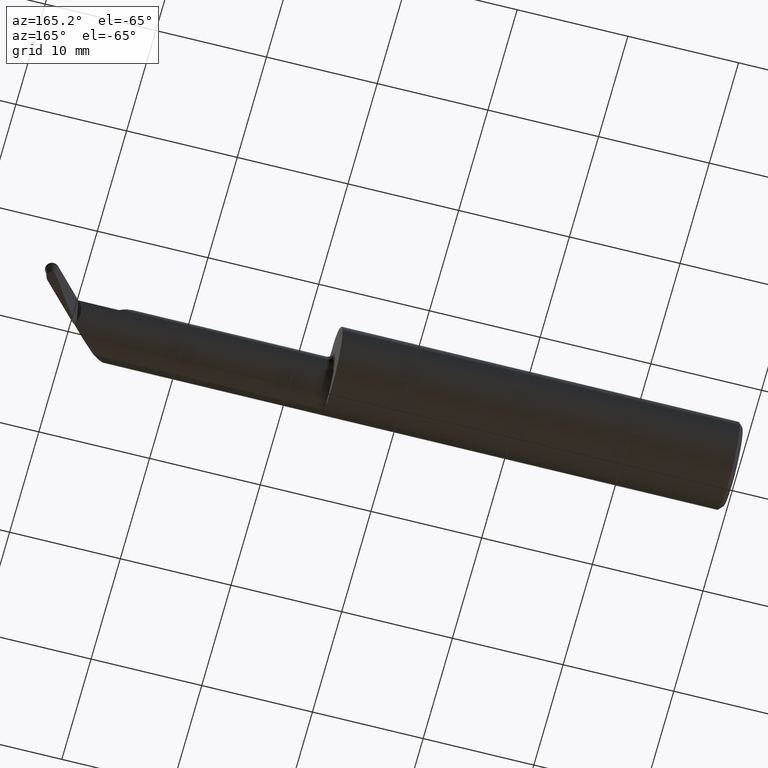
[diagram: clean part render]
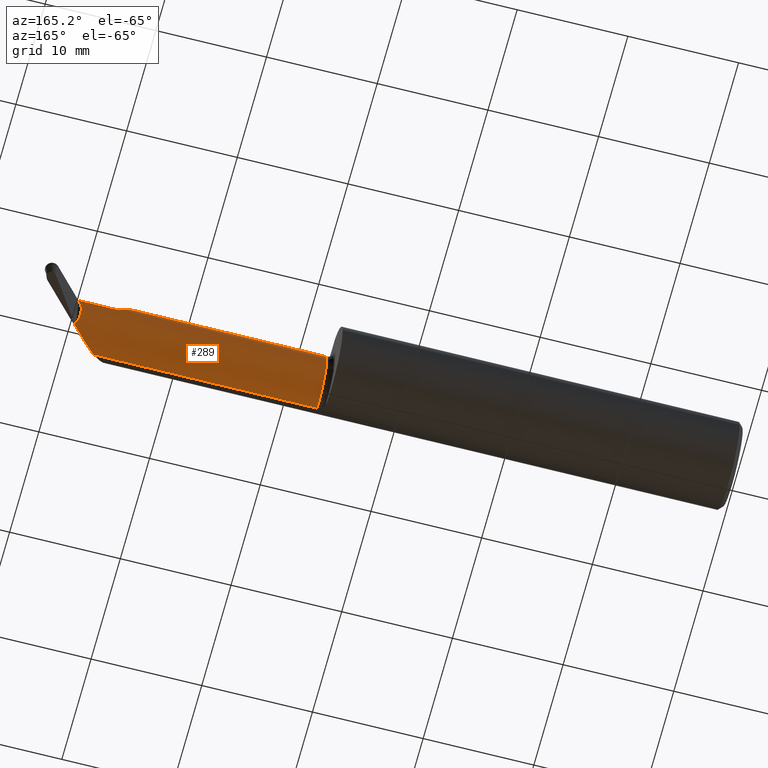
[diagram: same view with one face highlighted and labeled with its STEP entity id]
A machine part, auxiliary view. The second image highlights one B-rep face of the part: STEP entity #289.
In plain terms, the highlighted cylindrical surface (edge-blend (fillet) strip) has radius 3.175 mm, axis along (-1, -0, -0).
Its self-contained STEP definition (entity closure, byte-faithful):
#15 = CIRCLE ( 'NONE', #605, 0.1249999999999999861 ) ;
#48 = VERTEX_POINT ( 'NONE', #207 ) ;
#50 = CARTESIAN_POINT ( 'NONE',  ( 2.335204060364073353, 0.03590000000000036218, 1.707404996040164561E-15 ) ) ;
#52 = VERTEX_POINT ( 'NONE', #607 ) ;
#58 = CARTESIAN_POINT ( 'NONE',  ( 1.451999999999999735, -0.08910000000000006803, 0.000000000000000000 ) ) ;
#63 =( BOUNDED_CURVE ( )  B_SPLINE_CURVE ( 3, ( #169, #401, #631, #622 ),
 .UNSPECIFIED., .F., .T. ) 
 B_SPLINE_CURVE_WITH_KNOTS ( ( 4, 4 ),
 ( 1.487009272507281432, 2.181294901577356615 ),
 .UNSPECIFIED. ) 
 CURVE ( )  GEOMETRIC_REPRESENTATION_ITEM ( )  RATIONAL_B_SPLINE_CURVE ( ( 1.000000000000000000, 0.9602323999064841242, 0.9602323999064841242, 1.000000000000000000 ) ) 
 REPRESENTATION_ITEM ( '' )  );
#65 = CARTESIAN_POINT ( 'NONE',  ( 2.328126455961632146, 0.001896556112391220008, -0.08610141919949108880 ) ) ;
#67 = ORIENTED_EDGE ( 'NONE', *, *, #421, .T. ) ;
#69 = CARTESIAN_POINT ( 'NONE',  ( 1.426999999999999824, 0.03589999999999989727, -4.748720145236707432E-17 ) ) ;
#81 = LINE ( 'NONE', #603, #661 ) ;
#88 = DIRECTION ( 'NONE',  ( 0.000000000000000000, -1.000000000000000000, 0.000000000000000000 ) ) ;
#94 = EDGE_CURVE ( 'NONE', #612, #308, #15, .T. ) ;
#109 = VERTEX_POINT ( 'NONE', #387 ) ;
#124 = CARTESIAN_POINT ( 'NONE',  ( 2.323746707983512128, 0.03174157738134750911, -0.03310259354520850988 ) ) ;
#132 = ORIENTED_EDGE ( 'NONE', *, *, #229, .F. ) ;
#144 = DIRECTION ( 'NONE',  ( -1.000000000000000000, -7.764387408964029902E-17, -0.000000000000000000 ) ) ;
#145 =( BOUNDED_CURVE ( )  B_SPLINE_CURVE ( 3, ( #641, #301, #307, #482 ),
 .UNSPECIFIED., .F., .T. ) 
 B_SPLINE_CURVE_WITH_KNOTS ( ( 4, 4 ),
 ( 2.691916191091909827, 2.767232025981809507 ),
 .UNSPECIFIED. ) 
 CURVE ( )  GEOMETRIC_REPRESENTATION_ITEM ( )  RATIONAL_B_SPLINE_CURVE ( ( 1.000000000000000000, 0.9995273496113951106, 0.9995273496113951106, 1.000000000000000000 ) ) 
 REPRESENTATION_ITEM ( '' )  );
#151 = LINE ( 'NONE', #393, #199 ) ;
#169 = CARTESIAN_POINT ( 'NONE',  ( 2.247040128195683995, -0.09360841750841747411, -0.1249186702281519928 ) ) ;
#185 = CARTESIAN_POINT ( 'NONE',  ( 2.325542287366606953, 0.007625947997758561643, -0.07965069524893227115 ) ) ;
#195 = DIRECTION ( 'NONE',  ( 1.000000000000000000, 7.764387408964029902E-17, 0.000000000000000000 ) ) ;
#199 = VECTOR ( 'NONE', #565, 39.37007874015748143 ) ;
#207 = CARTESIAN_POINT ( 'NONE',  ( 2.066081329771848996, -0.09360841750841744635, 0.1249186702281519790 ) ) ;
#229 = EDGE_CURVE ( 'NONE', #291, #109, #652, .T. ) ;
#233 = ORIENTED_EDGE ( 'NONE', *, *, #648, .T. ) ;
#239 = CARTESIAN_POINT ( 'NONE',  ( 2.335204060364074241, 0.002469989052606497409, -0.08508781995625532002 ) ) ;
#244 = ORIENTED_EDGE ( 'NONE', *, *, #94, .T. ) ;
#253 = EDGE_CURVE ( 'NONE', #333, #308, #63, .T. ) ;
#258 = ORIENTED_EDGE ( 'NONE', *, *, #253, .F. ) ;
#269 = CARTESIAN_POINT ( 'NONE',  ( 2.335204060364074241, -0.08909999999999999865, 0.000000000000000000 ) ) ;
#276 = CARTESIAN_POINT ( 'NONE',  ( 2.066081329771848996, -0.09360841750841744635, 0.1249186702281519790 ) ) ;
#277 = DIRECTION ( 'NONE',  ( -1.000000000000000000, -7.764387408964029902E-17, -0.000000000000000000 ) ) ;
#289 = ADVANCED_FACE ( 'NONE', ( #353 ), #616, .T. ) ;
#291 = VERTEX_POINT ( 'NONE', #673 ) ;
#301 = CARTESIAN_POINT ( 'NONE',  ( 2.332794648486069988, -0.001888384406420577644, -0.08960461377418882378 ) ) ;
#303 = CARTESIAN_POINT ( 'NONE',  ( 2.335204060364073353, 0.03590000000000036218, 1.707404996040164561E-15 ) ) ;
#307 = CARTESIAN_POINT ( 'NONE',  ( 2.334054047474920957, 0.0003333306112328325316, -0.08738725353188379896 ) ) ;
#308 = VERTEX_POINT ( 'NONE', #637 ) ;
#319 = VERTEX_POINT ( 'NONE', #586 ) ;
#333 = VERTEX_POINT ( 'NONE', #589 ) ;
#334 = EDGE_CURVE ( 'NONE', #319, #612, #145, .T. ) ;
#335 = CARTESIAN_POINT ( 'NONE',  ( 2.191000000000000281, 0.03589999999999998748, -4.748720145236707432E-17 ) ) ;
#353 = FACE_OUTER_BOUND ( 'NONE', #420, .T. ) ;
#355 = CARTESIAN_POINT ( 'NONE',  ( 2.322350948754541289, 0.02912653887757216120, -0.04153261417263075933 ) ) ;
#365 = EDGE_CURVE ( 'NONE', #52, #533, #582, .T. ) ;
#387 = CARTESIAN_POINT ( 'NONE',  ( 1.451999999999999735, -0.09360841750841747411, -0.1249186702281519512 ) ) ;
#389 = EDGE_CURVE ( 'NONE', #333, #109, #81, .T. ) ;
#391 = CARTESIAN_POINT ( 'NONE',  ( 2.115664766370900729, 0.03589999999999993197, 0.07533523362909981536 ) ) ;
#393 = CARTESIAN_POINT ( 'NONE',  ( 1.893602030182037099, -0.09360841750841751574, 0.1249186702281519928 ) ) ;
#401 = CARTESIAN_POINT ( 'NONE',  ( 2.278626883863794195, -0.06410244459253963689, -0.1259835650485489067 ) ) ;
#405 = AXIS2_PLACEMENT_3D ( 'NONE', #579, #277, #503 ) ;
#417 = CARTESIAN_POINT ( 'NONE',  ( 2.322296667986415653, 0.01769438436255730412, -0.06553702570551822593 ) ) ;
#420 = EDGE_LOOP ( 'NONE', ( #522, #233, #567, #244, #258, #591, #132, #67, #694 ) ) ;
#421 = EDGE_CURVE ( 'NONE', #291, #48, #151, .T. ) ;
#458 = CARTESIAN_POINT ( 'NONE',  ( 2.063364188281496148, -0.01832219985822297267, 0.1276358117185051599 ) ) ;
#482 = CARTESIAN_POINT ( 'NONE',  ( 2.335204060364074241, 0.002469989052606497409, -0.08508781995625532002 ) ) ;
#492 = EDGE_CURVE ( 'NONE', #48, #52, #507, .T. ) ;
#499 = AXIS2_PLACEMENT_3D ( 'NONE', #58, #688, #563 ) ;
#503 = DIRECTION ( 'NONE',  ( 0.000000000000000000, -1.000000000000000000, 0.000000000000000000 ) ) ;
#507 =( BOUNDED_CURVE ( )  B_SPLINE_CURVE ( 3, ( #276, #458, #391, #335 ),
 .UNSPECIFIED., .F., .T. ) 
 B_SPLINE_CURVE_WITH_KNOTS ( ( 4, 4 ),
 ( 6.247110142813124156, 7.853981633974482790 ),
 .UNSPECIFIED. ) 
 CURVE ( )  GEOMETRIC_REPRESENTATION_ITEM ( )  RATIONAL_B_SPLINE_CURVE ( ( 1.000000000000000000, 0.7961586327312957234, 0.7961586327312957234, 1.000000000000000000 ) ) 
 REPRESENTATION_ITEM ( '' )  );
#522 = ORIENTED_EDGE ( 'NONE', *, *, #365, .T. ) ;
#533 = VERTEX_POINT ( 'NONE', #50 ) ;
#563 = DIRECTION ( 'NONE',  ( 0.000000000000000000, -1.000000000000000000, 0.000000000000000000 ) ) ;
#565 = DIRECTION ( 'NONE',  ( 1.000000000000000000, 7.764387408964029902E-17, 0.000000000000000000 ) ) ;
#567 = ORIENTED_EDGE ( 'NONE', *, *, #334, .T. ) ;
#569 = VECTOR ( 'NONE', #195, 39.37007874015748143 ) ;
#579 = CARTESIAN_POINT ( 'NONE',  ( 1.426999999999999824, -0.08910000000000006803, 0.000000000000000000 ) ) ;
#581 = CARTESIAN_POINT ( 'NONE',  ( 2.321617700977221421, 0.02213976897028994972, -0.05769043538073889005 ) ) ;
#582 = LINE ( 'NONE', #69, #569 ) ;
#586 = CARTESIAN_POINT ( 'NONE',  ( 2.331427649163776206, -0.004192005716962103785, -0.09173675657462256050 ) ) ;
#589 = CARTESIAN_POINT ( 'NONE',  ( 2.247040128195683995, -0.09360841750841747411, -0.1249186702281519928 ) ) ;
#591 = ORIENTED_EDGE ( 'NONE', *, *, #389, .T. ) ;
#592 = CARTESIAN_POINT ( 'NONE',  ( 2.328318086883046423, 0.03512901655589276140, -0.01629785166784869510 ) ) ;
#603 = CARTESIAN_POINT ( 'NONE',  ( 1.893602030182037099, -0.09360841750841751574, -0.1249186702281519928 ) ) ;
#605 = AXIS2_PLACEMENT_3D ( 'NONE', #269, #713, #88 ) ;
#607 = CARTESIAN_POINT ( 'NONE',  ( 2.191000000000000281, 0.03589999999999998748, -4.748720145236707432E-17 ) ) ;
#612 = VERTEX_POINT ( 'NONE', #239 ) ;
#616 = CYLINDRICAL_SURFACE ( 'NONE', #405, 0.1249999999999999861 ) ;
#622 = CARTESIAN_POINT ( 'NONE',  ( 2.335204060364074241, -0.01263723099847496520, -0.09888602002618680775 ) ) ;
#631 = CARTESIAN_POINT ( 'NONE',  ( 2.309231951337382682, -0.03599425379837072753, -0.1169466380836112485 ) ) ;
#633 = CARTESIAN_POINT ( 'NONE',  ( 2.331423184115057445, 0.03589999999998171043, -0.008075348075464514400 ) ) ;
#637 = CARTESIAN_POINT ( 'NONE',  ( 2.335204060364074241, -0.01263723099847496520, -0.09888602002618680775 ) ) ;
#640 = CARTESIAN_POINT ( 'NONE',  ( 2.331427649163776206, -0.004192005716962103785, -0.09173675657462256050 ) ) ;
#641 = CARTESIAN_POINT ( 'NONE',  ( 2.331427649163776206, -0.004192005716962103785, -0.09173675657462256050 ) ) ;
#648 = EDGE_CURVE ( 'NONE', #533, #319, #689, .T. ) ;
#652 = CIRCLE ( 'NONE', #499, 0.1249999999999999167 ) ;
#661 = VECTOR ( 'NONE', #144, 39.37007874015748143 ) ;
#673 = CARTESIAN_POINT ( 'NONE',  ( 1.451999999999999735, -0.09360841750841751574, 0.1249186702281519512 ) ) ;
#688 = DIRECTION ( 'NONE',  ( -1.000000000000000000, -7.764387408964029902E-17, -0.000000000000000000 ) ) ;
#689 = B_SPLINE_CURVE_WITH_KNOTS ( 'NONE', 3,
 ( #303, #633, #592, #124, #355, #581, #417, #185, #65, #640 ),
 .UNSPECIFIED., .F., .F.,
 ( 4, 2, 2, 2, 4 ),
 ( 6.761752905256914785E-15, 0.0006719658164488517306, 0.001343931632890941292, 0.002015897449333031288, 0.002687863265775120632 ),
 .UNSPECIFIED. ) ;
#694 = ORIENTED_EDGE ( 'NONE', *, *, #492, .T. ) ;
#713 = DIRECTION ( 'NONE',  ( -1.000000000000000000, -7.764387408964029902E-17, -0.000000000000000000 ) ) ;